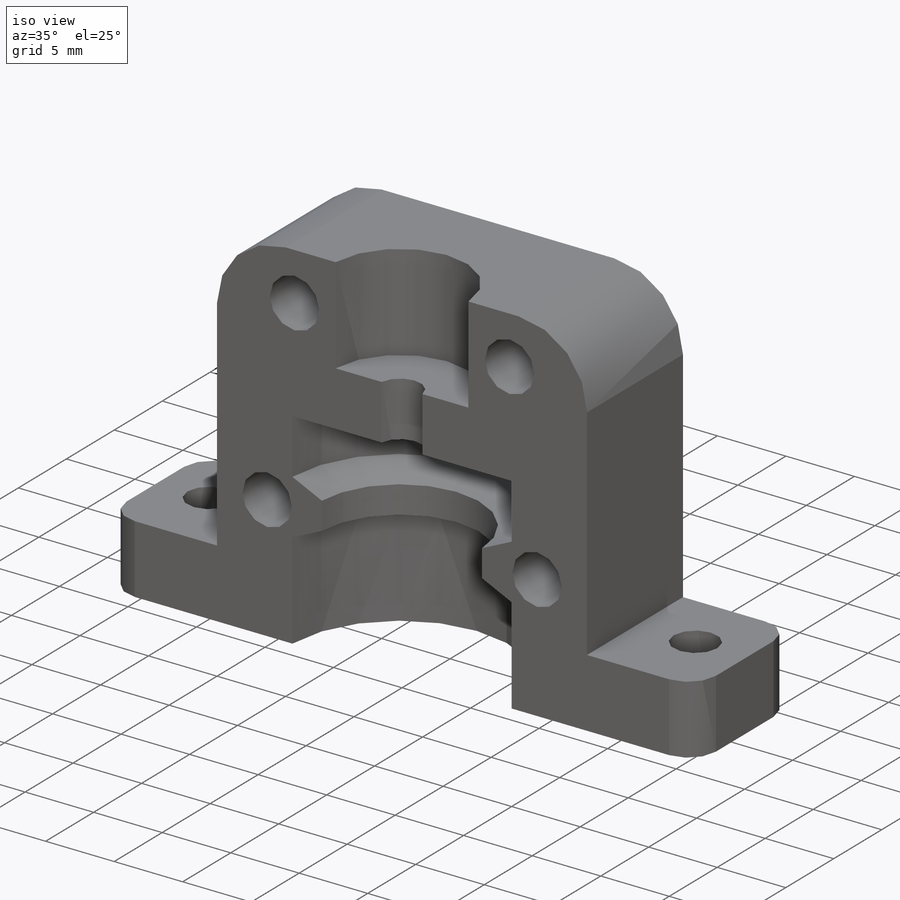
[diagram: iso view]
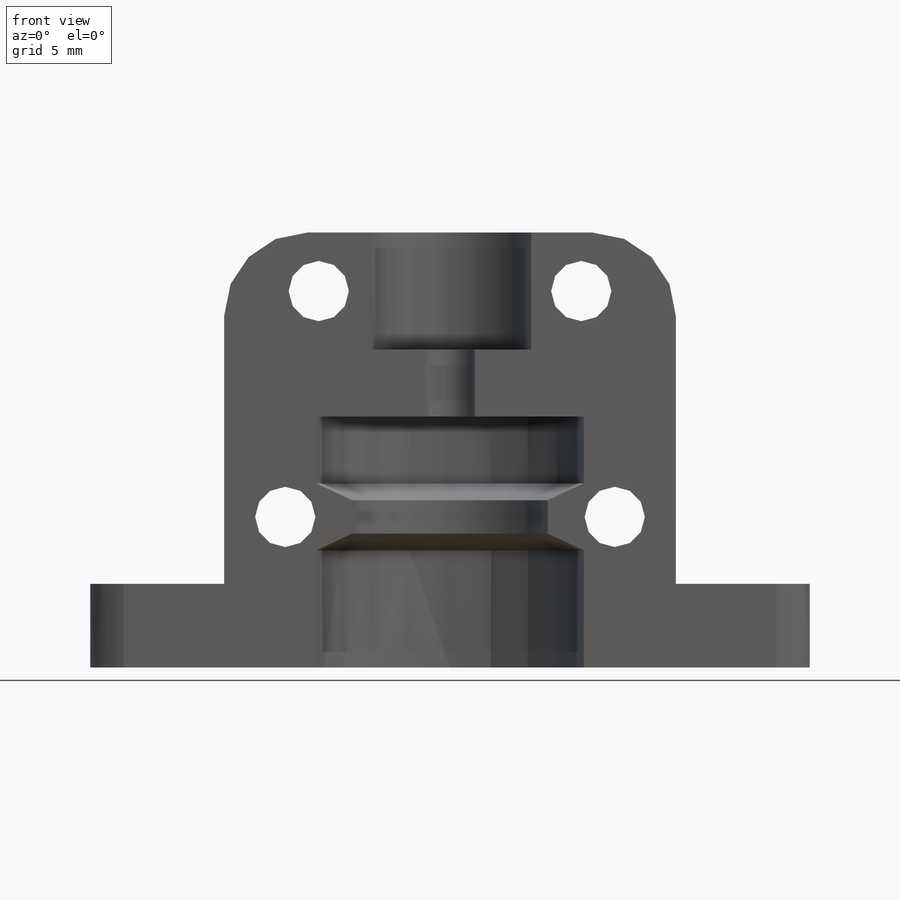
[diagram: front view]
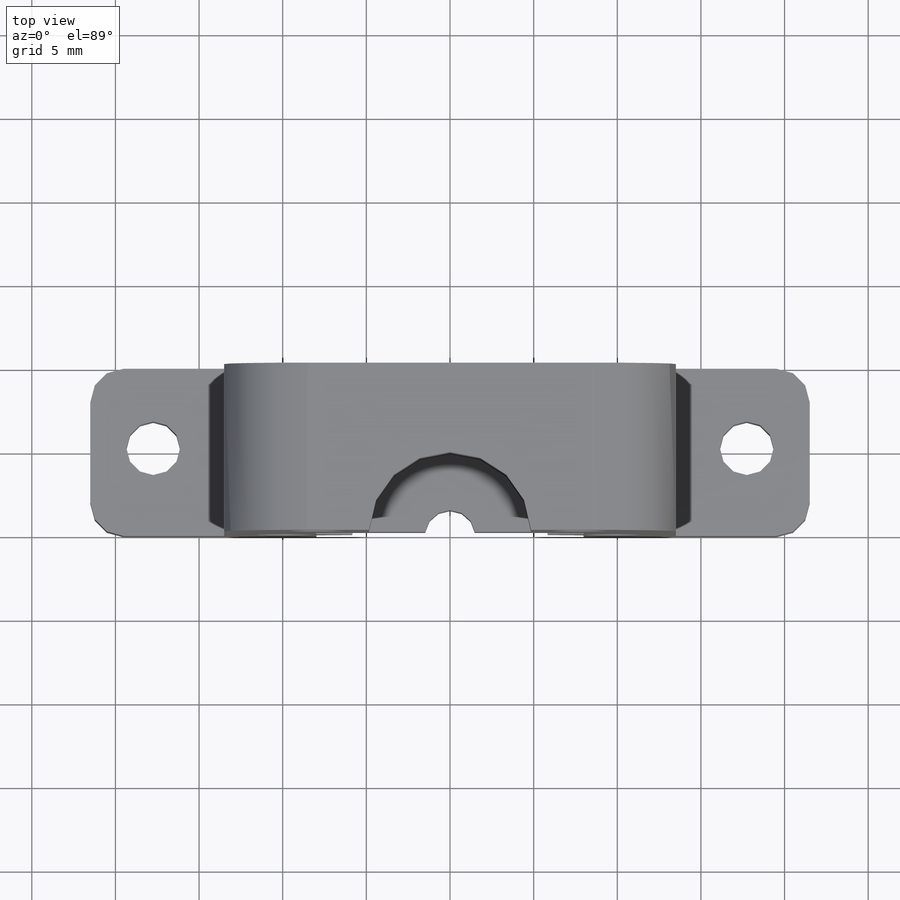
[diagram: top view]
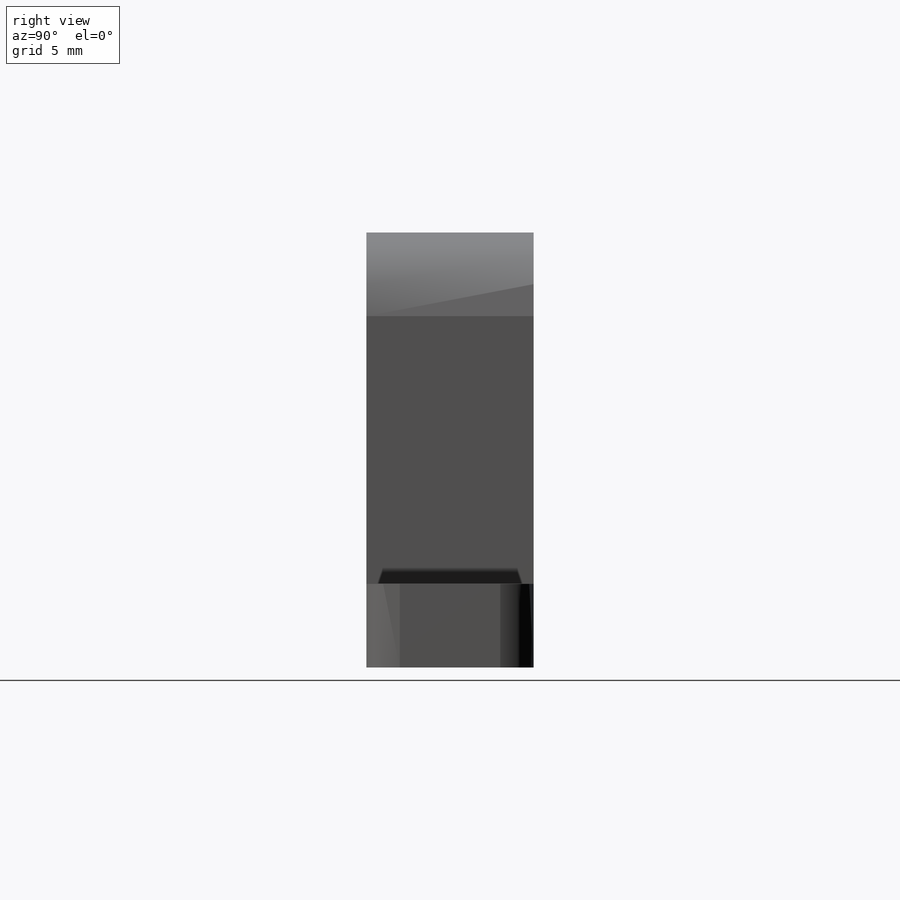
[diagram: right view]
SOLIDWORKS PART (.sldprt)
format: sldprt  version: not decoded by parser v0  size: 550,912 bytes
history: native  units: mm
features: sketch x10, extrude x5, cut_extrude x4, mirror x3, fillet x2, material x1, revolve x1 (+11 scaffold rows collapsed)
feature tree (37):
  scaffold x11  (default folders/planes/origin — collapsed)
  material  "Material <not specified>"
  sketch  "Sketch1"  dims[D1=27.0mm D2=10.0mm]
  extrude  "Boss-Extrude1"  Depth=15mm
  sketch  "Sketch2"  dims[D2=16.0mm D1=0.2mm]
  cut_extrude  "Cut-PEEK"  [1 undecoded]
  sketch  "Sketch4"  dims[D1=5.85mm]
  extrude  "Boss-PEEK Rib"  Depth=2mm
  sketch  "Sketch5"  dims[D1=4.0mm]
  revolve  "Revolve-Peek Champfer"  [1 undecoded]
  sketch  "Sketch6"  dims[D1=3.6mm D2=4.0mm]
  cut_extrude  "Cut-PEEK Screw Hole"  [1 undecoded]
  mirror  "Mirror1"
  sketch  "Sketch7"  dims[D1=1.5mm]
  extrude  "Boss-Extrude3"  Depth=4mm
  sketch  "Sketch8"  dims[D1=4.85mm]
  extrude  "Boss-Extend for Fitting"  Depth=7mm
  sketch  "Sketch9"  dims[D1=3.0mm D2=3.5mm]
  cut_extrude  "Cut-Fitting Screws"  [1 undecoded]
  mirror  "Mirror2"
  sketch  "Sketch10"  dims[D1=8.0mm D2=7.0mm]
  extrude  "Boss-Effector Screw Tab"  Depth=5mm
  sketch  "Sketch11"
  cut_extrude  "Cut-Effector Screw Hole"  [1 undecoded]
  mirror  "Mirror3"
  fillet  "Fillet1"  Radius=5mm
  fillet  "Fillet2"  Radius=2mm
decode coverage: 16 of 25 modeling features carry decoded parameters
note: 5 parameter values undecoded
summary: no parameter record found for 5 features
note: suppression state not decoded; provenance and decode notes live in map.json
